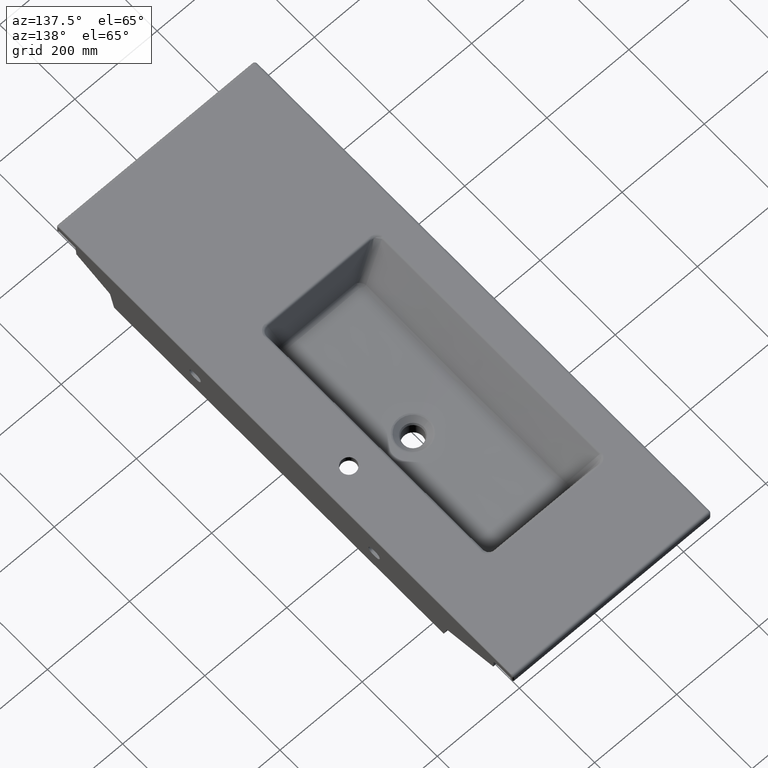
[diagram: clean part render]
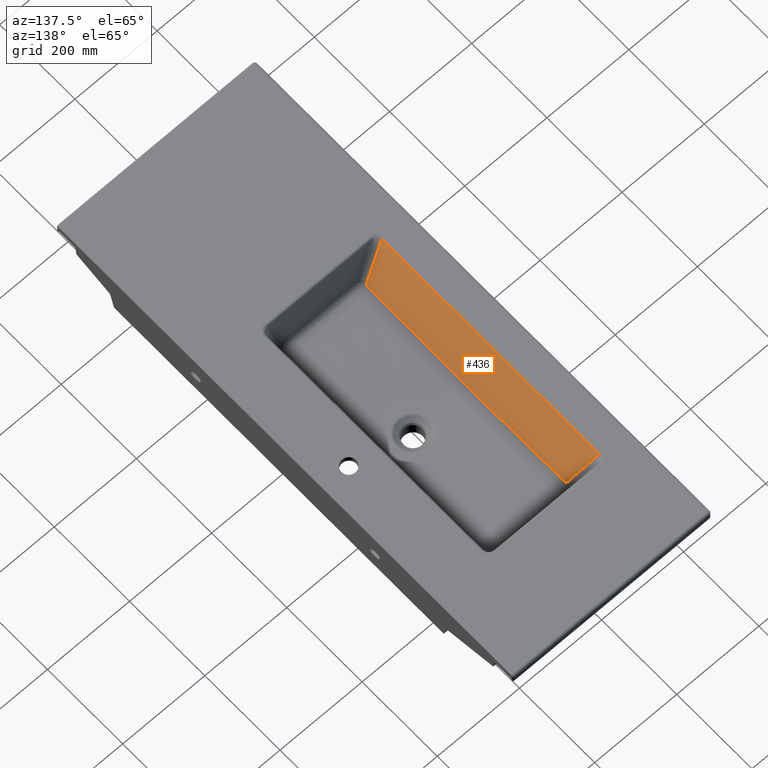
[diagram: same view with one face highlighted and labeled with its STEP entity id]
A machine part, auxiliary view. The second image highlights one B-rep face of the part: STEP entity #436.
In plain terms, the highlighted face is a freeform B-spline surface patch.
Its self-contained STEP definition (entity closure, byte-faithful):
#222=B_SPLINE_SURFACE_WITH_KNOTS('',3,3,((#4111,#4112,#4113,#4114),(#4115,
#4116,#4117,#4118),(#4119,#4120,#4121,#4122),(#4123,#4124,#4125,#4126),
(#4127,#4128,#4129,#4130),(#4131,#4132,#4133,#4134),(#4135,#4136,#4137,
#4138),(#4139,#4140,#4141,#4142),(#4143,#4144,#4145,#4146),(#4147,#4148,
#4149,#4150)),.UNSPECIFIED.,.F.,.F.,.F.,(4,1,1,1,1,1,1,4),(4,4),(0.,0.125,
0.25,0.375,0.5,0.625,0.75,1.),(0.,1.),.UNSPECIFIED.);
#296=FACE_OUTER_BOUND('',#692,.T.);
#436=ADVANCED_FACE('',(#296),#222,.T.);
#692=EDGE_LOOP('',(#1176,#1177,#1178,#1179));
#893=B_SPLINE_CURVE_WITH_KNOTS('',3,(#4067,#4068,#4069,#4070,#4071,#4072,
#4073,#4074,#4075,#4076),.UNSPECIFIED.,.F.,.F.,(4,3,3,4),(0.,0.261915386015105,
0.572715264929543,1.),.UNSPECIFIED.);
#894=B_SPLINE_CURVE_WITH_KNOTS('',3,(#4079,#4080,#4081,#4082,#4083,#4084,
#4085,#4086,#4087,#4088),.UNSPECIFIED.,.F.,.F.,(4,3,3,4),(0.,0.370010660915147,
0.685003122518137,1.),.UNSPECIFIED.);
#895=B_SPLINE_CURVE_WITH_KNOTS('',3,(#4090,#4091,#4092,#4093,#4094,#4095,
#4096,#4097,#4098,#4099),.UNSPECIFIED.,.F.,.F.,(4,3,3,4),(0.,0.281577354940424,
0.593166085412077,1.),.UNSPECIFIED.);
#896=B_SPLINE_CURVE_WITH_KNOTS('',3,(#4101,#4102,#4103,#4104,#4105,#4106,
#4107,#4108,#4109,#4110),.UNSPECIFIED.,.F.,.F.,(4,2,2,2,4),(0.,0.25,0.5,
0.75,1.),.UNSPECIFIED.);
#1176=ORIENTED_EDGE('',*,*,#2145,.T.);
#1177=ORIENTED_EDGE('',*,*,#2146,.T.);
#1178=ORIENTED_EDGE('',*,*,#2147,.T.);
#1179=ORIENTED_EDGE('',*,*,#2148,.T.);
#1881=VERTEX_POINT('',#4077);
#1882=VERTEX_POINT('',#4078);
#1883=VERTEX_POINT('',#4089);
#1884=VERTEX_POINT('',#4100);
#2145=EDGE_CURVE('',#1881,#1882,#893,.T.);
#2146=EDGE_CURVE('',#1882,#1883,#894,.T.);
#2147=EDGE_CURVE('',#1883,#1884,#895,.T.);
#2148=EDGE_CURVE('',#1884,#1881,#896,.T.);
#4067=CARTESIAN_POINT('',(-111.602191988191,384.109280251726,-74.117419586668));
#4068=CARTESIAN_POINT('',(-116.843683562025,386.119737113013,-67.8323972407895));
#4069=CARTESIAN_POINT('',(-122.085397852182,388.130762835483,-61.5477425643255));
#4070=CARTESIAN_POINT('',(-127.327327490216,390.142321264632,-55.2634380718711));
#4071=CARTESIAN_POINT('',(-133.54762299112,392.529321608142,-47.8062164645653));
#4072=CARTESIAN_POINT('',(-139.768221769376,394.917071983509,-40.3494878571651));
#4073=CARTESIAN_POINT('',(-145.98911162764,397.305517265737,-32.8932247606738));
#4074=CARTESIAN_POINT('',(-154.541532156573,400.589129245593,-22.642424790177));
#4075=CARTESIAN_POINT('',(-163.094502897463,403.874054091235,-12.3925043043445));
#4076=CARTESIAN_POINT('',(-171.647992884195,407.160164171751,-2.14339731111243));
#4077=CARTESIAN_POINT('',(-111.602191988191,384.109280251726,-74.117419586668));
#4078=CARTESIAN_POINT('',(-171.647992884195,407.160164171751,-2.14339731111243));
#4079=CARTESIAN_POINT('',(-171.647992884195,407.160164171751,-2.14339731111243));
#4080=CARTESIAN_POINT('',(-171.644975785472,335.831875289545,-2.21168455244628));
#4081=CARTESIAN_POINT('',(-171.644763480405,264.503568893112,-2.26631018298448));
#4082=CARTESIAN_POINT('',(-171.644791728168,193.175253071021,-2.29510422604411));
#4083=CARTESIAN_POINT('',(-171.644815775668,132.453002811954,-2.31961677857651));
#4084=CARTESIAN_POINT('',(-171.644675106636,71.7307342162099,-2.31017171656521));
#4085=CARTESIAN_POINT('',(-171.644814228119,11.0084884133765,-2.2763777609528));
#4086=CARTESIAN_POINT('',(-171.644953351565,-49.7146139033195,-2.24258332866185));
#4087=CARTESIAN_POINT('',(-171.645732766395,-110.437707602271,-2.19383473571289));
#4088=CARTESIAN_POINT('',(-171.64799518136,-171.160797170262,-2.14201537489853));
#4089=CARTESIAN_POINT('',(-171.64799518136,-171.160797170262,-2.14201537489853));
#4090=CARTESIAN_POINT('',(-171.64799518136,-171.160797170262,-2.14201537489853));
#4091=CARTESIAN_POINT('',(-166.023833391536,-168.998377901305,-8.8767756165105));
#4092=CARTESIAN_POINT('',(-160.399882467308,-166.836428262238,-15.6118627723563));
#4093=CARTESIAN_POINT('',(-154.776151742356,-164.674981535284,-22.3472951433798));
#4094=CARTESIAN_POINT('',(-148.553026601774,-162.283161207392,-29.8006104905791));
#4095=CARTESIAN_POINT('',(-142.33017105705,-159.891956590073,-37.2543485703937));
#4096=CARTESIAN_POINT('',(-136.107598255406,-157.501417243455,-44.7085359856368));
#4097=CARTESIAN_POINT('',(-127.982934581512,-154.380147503494,-54.4412892440677));
#4098=CARTESIAN_POINT('',(-119.858752796152,-151.260011227504,-64.1748084000935));
#4099=CARTESIAN_POINT('',(-111.73508339683,-148.141132420356,-73.9091579453816));
#4100=CARTESIAN_POINT('',(-111.73508339683,-148.141132420356,-73.9091579453816));
#4101=CARTESIAN_POINT('',(-111.73508339683,-148.141132420355,-73.9091579453815));
#4102=CARTESIAN_POINT('',(-111.736459680224,-103.794982345131,-75.2405297878233));
#4103=CARTESIAN_POINT('',(-111.721620492942,-59.4478863142883,-76.5369513855141));
#4104=CARTESIAN_POINT('',(-111.690697338058,29.2576845175139,-78.7110754494144));
#4105=CARTESIAN_POINT('',(-111.668491957954,73.6157231709782,-79.5815058933757));
#4106=CARTESIAN_POINT('',(-111.660970461176,162.340141250455,-79.6589462857695));
#4107=CARTESIAN_POINT('',(-111.685325124768,206.707347808096,-78.8440680671493));
#4108=CARTESIAN_POINT('',(-111.722662566524,295.414095489273,-76.7180252289762));
#4109=CARTESIAN_POINT('',(-111.756567215728,339.761968242928,-75.4280797589834));
#4110=CARTESIAN_POINT('',(-111.602191988191,384.109280251726,-74.1174195866681));
#4111=CARTESIAN_POINT('',(-173.446323434411,420.500000000001,0.0114075143563913));
#4112=CARTESIAN_POINT('',(-151.610708218805,412.044971251735,-26.0112653653469));
#4113=CARTESIAN_POINT('',(-129.775093003198,403.589942503466,-52.0339382450503));
#4114=CARTESIAN_POINT('',(-107.939477787592,395.134913755202,-78.0566111247536));
#4115=CARTESIAN_POINT('',(-173.446323434411,395.291666666667,0.0114075143563904));
#4116=CARTESIAN_POINT('',(-151.643027315937,387.542015282962,-26.2580945191166));
#4117=CARTESIAN_POINT('',(-129.839731197464,379.792363899256,-52.5275965525899));
#4118=CARTESIAN_POINT('',(-108.036435078988,372.042712515551,-78.7970985860625));
#4119=CARTESIAN_POINT('',(-173.446323434411,344.875000000001,0.0114075143563886));
#4120=CARTESIAN_POINT('',(-151.671672213756,338.535631631176,-26.741011410146));
#4121=CARTESIAN_POINT('',(-129.897020993101,332.196263262353,-53.4934303346488));
#4122=CARTESIAN_POINT('',(-108.122369772447,325.856894893528,-80.2458492591508));
#4123=CARTESIAN_POINT('',(-173.446323434411,269.25,0.011407514356386));
#4124=CARTESIAN_POINT('',(-151.66858958669,265.024141371303,-27.3970989663923));
#4125=CARTESIAN_POINT('',(-129.890855738969,260.798282742605,-54.8056054471404));
#4126=CARTESIAN_POINT('',(-108.11312189125,256.572424113907,-82.2141119278898));
#4127=CARTESIAN_POINT('',(-173.446323434411,193.625,0.0114075143563833));
#4128=CARTESIAN_POINT('',(-151.668944226932,191.508279807354,-27.9202278814553));
#4129=CARTESIAN_POINT('',(-129.891565019453,189.39155961471,-55.8518632772676));
#4130=CARTESIAN_POINT('',(-108.114185811975,187.274839422061,-83.7834986730788));
#4131=CARTESIAN_POINT('',(-173.446323434411,118.,0.0114075143563806));
#4132=CARTESIAN_POINT('',(-151.669217023929,117.988060890292,-28.1358348430997));
#4133=CARTESIAN_POINT('',(-129.89211061345,117.976121780582,-56.2830772005585));
#4134=CARTESIAN_POINT('',(-108.115004202965,117.964182670875,-84.4303195580121));
#4135=CARTESIAN_POINT('',(-173.446323434411,42.375,0.011407514356378));
#4136=CARTESIAN_POINT('',(-151.669162464529,44.4684572304221,-27.882298364499));
#4137=CARTESIAN_POINT('',(-129.892001494645,46.5619144608452,-55.7760042433535));
#4138=CARTESIAN_POINT('',(-108.114840524767,48.6553716912663,-83.6697101222097));
#4139=CARTESIAN_POINT('',(-173.446323434411,-58.4583333333335,0.0114075143563744));
#4140=CARTESIAN_POINT('',(-151.669162464529,-53.5522097010142,-27.1571745636811));
#4141=CARTESIAN_POINT('',(-129.892001494651,-48.6460860686946,-54.3257566417208));
#4142=CARTESIAN_POINT('',(-108.114840524767,-43.7399624363753,-81.494338719756));
#4143=CARTESIAN_POINT('',(-173.446323434411,-134.083333333334,0.0114075143563717));
#4144=CARTESIAN_POINT('',(-151.669162464529,-127.06162506875,-26.437328170946));
#4145=CARTESIAN_POINT('',(-129.892001494649,-120.03991680417,-52.8860638562475));
#4146=CARTESIAN_POINT('',(-108.114840524767,-113.018208539584,-79.3347995415507));
#4147=CARTESIAN_POINT('',(-173.446323434411,-184.500000000001,0.01140751435637));
#4148=CARTESIAN_POINT('',(-151.669162464529,-176.067605481326,-25.9416023080019));
#4149=CARTESIAN_POINT('',(-129.89200149465,-167.635210962652,-51.8946121303605));
#4150=CARTESIAN_POINT('',(-108.114840524767,-159.202816443977,-77.8476219527185));